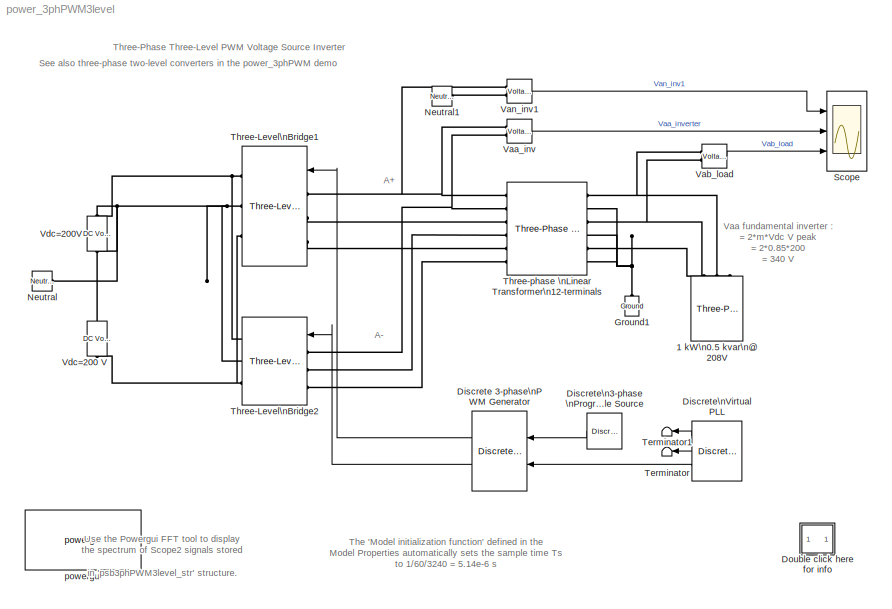
MODEL power_3phPWM3level
KIND model
CONFIG InitFcn = assignin('base','Ts',[1/60/3240])
BLOCK [Reference]   Vdc=200 V  REF=powerlib/Electrical\nSources/DC Voltage Source
  Amplitude = 200
  AttributesFormatString = \\n
  Description = source block
  Measurements = None
  Ports = [0, 0, 0, 0, 0, 1, 1]
  ShowPortLabels = on
  SourceBlock = powerlib/Electrical\nSources/DC Voltage Source
  SourceType = DC Voltage Source
BLOCK [Reference] 1 kW\n0.5 kvar\n@ 208V   REF=powerlib/Elements/Three-Phase\nParallel RLC Load
  ActivePower = 1000
  AttributesFormatString = \\n
  CapacitivePower = 500
  Configuration = Y (grounded)
  InductivePower = 0
  LConnTagsString = A|B|C
  LeftPortType = p1
  Measurements = None
  NominalFrequency = 60
  NominalVoltage = 208
  PhysicalDomain = powersysdomain
  Ports = [0, 0, 0, 0, 0, 3]
  RightPortType = p1
  SourceBlock = powerlib/Elements/Three-Phase\nParallel RLC Load
  SourceType = Three-Phase Parallel RLC Load
  SubClassName = unknown
BLOCK [Reference] Discrete 3-phase\nPWM Generator  REF=powerlib_extras/Discrete \nControl Blocks/Discrete 3-phase\nPWM Generator
  Fc = 18*60
  Freq = 60
  ModulatingSignals = off
  ModulatorMode = Synchronized
  ModulatorType = 3-level
  Phase = 0
  Ports = [2, 2]
  ShowPortLabels = on
  SourceBlock = powerlib_extras/Discrete \nControl Blocks/Discrete 3-phase\nPWM Generator
  SourceType = Discrete 3-phase PWM Generator (2- or 3-level)
  Ts = Ts
  m = 0.85
  nF = 18
BLOCK [Reference] Discrete\n3-phase \nProgrammable Source  REF=powerlib_extras/Discrete \nControl Blocks/Discrete\n3-phase \nProgrammable Source
  HarmonicGeneration = off
  Par_HarmoA = [3 0.2 -25 0]
  Par_HarmoB = [2 0.15 35 2]
  Par_Timing_Harmo = [0.05  3]
  Par_Timing_Variation = [0.1 1.2]
  Par_Vps = [0.85 0 60]
  Ports = [0, 1]
  ShowPortLabels = on
  SinglePhase = on
  SourceBlock = powerlib_extras/Discrete \nControl Blocks/Discrete\n3-phase \nProgrammable Source
  SourceType = Discrete 3-phase Programmable Source
  Ts = Ts
  VariationEntity = None
  VariationFreq = 2
  VariationMag = 0.3
  VariationRate = 10
  VariationStep = -0.5
  VariationType = Step
  Xtime = [0 0.1 0.15 0.2]
  Yampli = [1 0.2 1.2 1.0]
BLOCK [Reference] Discrete\nVirtual PLL  REF=powerlib_extras/Discrete \nControl Blocks/Discrete\nVirtual PLL
  Freq = 60
  Phase = 0
  Ports = [0, 3]
  ShowPortLabels = on
  SourceBlock = powerlib_extras/Discrete \nControl Blocks/Discrete\nVirtual PLL
  SourceType = Discrete Virtual PLL
  Ts = Ts
BLOCK [SubSystem] Double click here for  info
  MaskDisplay = disp('?')
  MaskIconFrame = on
  MaskIconOpaque = on
  MaskIconRotate = none
  MaskIconUnits = autoscale
  MinAlgLoopOccurrences = off
  Ports = []
  RTWSystemCode = Auto
  TreatAsAtomicUnit = off
BLOCK [Reference] Ground1  REF=powerlib/Elements/Ground
  AttributesFormatString = \\n
  LConnTagsString = a
  LeftPortType = p1
  PhysicalDomain = powersysdomain
  Ports = [0, 0, 0, 0, 0, 1]
  RightPortType = p1
  SourceBlock = powerlib/Elements/Ground
  SourceType = Ground
  SubClassName = unknown
BLOCK [Reference] Neutral  REF=powerlib/Elements/Neutral
  AttributesFormatString = node %<NodeNumber>
  LConnTagsString = a
  LeftPortType = p1
  NodeNumber = 10
  PhysicalDomain = powersysdomain
  Ports = [0, 0, 0, 0, 0, 1, 1]
  RConnTagsString = __newr0
  RightPortType = p1
  SourceBlock = powerlib/Elements/Neutral
  SourceType = Neutral
  SubClassName = unknown
BLOCK [Reference] Neutral1  REF=powerlib/Elements/Neutral
  AttributesFormatString = node %<NodeNumber>
  LConnTagsString = a
  LeftPortType = p1
  NodeNumber = 10
  PhysicalDomain = powersysdomain
  Ports = [0, 0, 0, 0, 0, 1, 1]
  RConnTagsString = __newr0
  RightPortType = p1
  SourceBlock = powerlib/Elements/Neutral
  SourceType = Neutral
  SubClassName = unknown
BLOCK [Scope] Scope
  DataFormat = StructureWithTime
  LimitDataPoints = off
  MaxDataPoints = 500000
  NumInputPorts = 3
  Ports = [3]
  SaveName = psb3phPWM3level_str
  SaveToWorkspace = on
  TimeRange = 0.1
  YMax = 300~400~400
  YMin = -300~-400~-400
  ZoomMode = yonly
BLOCK [Terminator] Terminator
BLOCK [Terminator] Terminator1
BLOCK [Reference] Three-Level\nBridge1  REF=powerlib/Power\nElectronics/Three-Level Bridge
  Arms = 3
  AttributesFormatString = \\n
  Device = GTO / Diodes
  ForwardVoltages = [  1  1  ]
  Measurements = None
  Ports = [1, 0, 0, 0, 0, 3, 3]
  Ron = 1e-4
  SbubberCapacitance = inf
  ShowPortLabels = on
  SnubberResistance = 1e6
  SourceBlock = powerlib/Power\nElectronics/Three-Level Bridge
  SourceType = Three-Level Bridge
BLOCK [Reference] Three-Level\nBridge2  REF=powerlib/Power\nElectronics/Three-Level Bridge
  Arms = 3
  AttributesFormatString = \\n
  Device = GTO / Diodes
  ForwardVoltages = [  1  1  ]
  Measurements = None
  Ports = [1, 0, 0, 0, 0, 3, 3]
  Ron = 1e-4
  SbubberCapacitance = inf
  ShowPortLabels = on
  SnubberResistance = 1e6
  SourceBlock = powerlib/Power\nElectronics/Three-Level Bridge
  SourceType = Three-Level Bridge
BLOCK [Reference] Three-phase \nLinear Transformer\n12-terminals  REF=powerlib/Elements/Three-Phase Transformer\n12 Terminals
  AttributesFormatString = \\n
  Ports = [0, 0, 0, 0, 0, 6, 6]
  RatedPower = [ 1000 60 ]
  RmXm = [ 200 200 ]
  ShowPortLabels = on
  SourceBlock = powerlib/Elements/Three-Phase Transformer\n12 Terminals
  SourceType = Three-Phase Linear Transformer 12-Terminals
  Winding1 = [ 240  0.002  0.04 ]
  Winding2 = [ 208/sqrt(3) 0.002 0.04]
BLOCK [Reference] Vaa_inv  REF=powerlib/Measurements/Voltage Measurement
  AttributesFormatString = \\n
  OutputType = Magnitude
  PSBequivalent = 0
  PhasorSimulation = off
  Ports = [0, 1, 0, 0, 0, 2]
  ShowPortLabels = on
  SourceBlock = powerlib/Measurements/Voltage Measurement
  SourceType = Voltage Measurement
  Tag = PoWeRsYsTeMmEaSuReMeNt
BLOCK [Reference] Vab_load  REF=powerlib/Measurements/Voltage Measurement
  AttributesFormatString = \\n
  OutputType = Magnitude
  PSBequivalent = 0
  PhasorSimulation = off
  Ports = [0, 1, 0, 0, 0, 2]
  ShowPortLabels = on
  SourceBlock = powerlib/Measurements/Voltage Measurement
  SourceType = Voltage Measurement
  Tag = PoWeRsYsTeMmEaSuReMeNt
BLOCK [Reference] Van_inv1  REF=powerlib/Measurements/Voltage Measurement
  AttributesFormatString = \\n
  OutputType = Magnitude
  PSBequivalent = 0
  PhasorSimulation = off
  Ports = [0, 1, 0, 0, 0, 2]
  ShowPortLabels = on
  SourceBlock = powerlib/Measurements/Voltage Measurement
  SourceType = Voltage Measurement
  Tag = PoWeRsYsTeMmEaSuReMeNt
BLOCK [Reference] Vdc=200V   REF=powerlib/Electrical\nSources/DC Voltage Source
  Amplitude = 200
  AttributesFormatString = \\n
  Description = source block
  Measurements = None
  Ports = [0, 0, 0, 0, 0, 1, 1]
  ShowPortLabels = on
  SourceBlock = powerlib/Electrical\nSources/DC Voltage Source
  SourceType = DC Voltage Source
BLOCK [Reference] powergui  REF=powerlib/powergui
  DisplayStyle = off
  Frange = [0:2:500]
  FreqAxis = on
  MaxFrequency = 5000
  Ports = []
  Priority = 2
  RmsSteady = 1
  ShowPortLabels = on
  SourceBlock = powerlib/powergui
  SourceType = PSB option menu block
  StartTime = 0.1-2/60
  Ts = Ts
  Xlog = off
  Ylog = off
  ZoomFFT = on
  cycles = 2
  display = off
  echomessages = on
  frequency = 60
  frequencyindice = 1
  frequencyindicesteady = 1
  fundamental = 60
  methode = off
  save = off
  structure = psb3phPWM3level_str
  variable = ZData
ANNOTATION (root): A+
ANNOTATION (root): A-
ANNOTATION (root): See also three-phase two-level converters in the power_3phPWM demo
ANNOTATION (root): The 'Model initialization function' defined in the\nModel Properties automatically sets the sample time Ts\nto 1/60/3240 = 5.14e-6 s
ANNOTATION (root): Three-Phase Three-Level PWM Voltage Source Inverter
ANNOTATION (root): Use the Powergui FFT tool to display\nthe spectrum of Scope2 signals stored\nin 'psb3phPWM3level_str' structure.
ANNOTATION (root): Vaa fundamental inverter :\n= 2*m*Vdc V peak\n= 2*0.85*200 \n= 340 V
ANNOTATION Double click here for  info: Circuit Description
ANNOTATION Double click here for  info: Demonstration
ANNOTATION Double click here for  info: P. Giroux and G. Sybille (Hydro-Quebec)
ANNOTATION Double click here for  info: Run the simulation and observe the following three waveforms on the Scope block:\nPhase-neutral voltage Van_inv1 generated by inverter 1 (trace 1), phase A voltage Vaa_inverter generated by the twin inverter (trace 2) and\nphase-phase load voltage Vab_load (trace 3). The Van_inv1 waveform cleary demonstrates the three levels: +200 V, 0 V, and -200 V.\n\nOnce the simulation is completed, open the P...<+1204ch>
ANNOTATION Double click here for  info: The system consists of two three-phase three-level PWM voltage source converters connected in twin configuration\nThe inverter feeds an AC load (1kW, 500 var 60Hz @ 208 Vrms) through a three-phase transformer.\nHarmonic filtering is performed by the transformer leakage inductance (8%) and load capacitance (500 var).\n\nEach of the two inverters uses the Three-Level Bridge block where the specified...<+1966ch>
ANNOTATION Double click here for  info: This demonstration illustrates simulation of a 3-phase, 3-level inverter\nand Discrete 3-phase PWM Generator. It also demonstrates \nharmonic analysis of PWM waveforms using the Powergui/FFT tool.
LINE Discrete 3-phase\nPWM Generator:1 -> Three-Level\nBridge1:1
LINE Discrete 3-phase\nPWM Generator:2 -> Three-Level\nBridge2:1
LINE Discrete\n3-phase \nProgrammable Source:1 -> Discrete 3-phase\nPWM Generator:1
LINE Discrete\nVirtual PLL:1 -> Terminator1:1
LINE Discrete\nVirtual PLL:2 -> Terminator:1
LINE Discrete\nVirtual PLL:3 -> Discrete 3-phase\nPWM Generator:2
LINE Vaa_inv:1 -> Scope:2
LINE Vab_load:1 -> Scope:3
LINE Van_inv1:1 -> Scope:1
PNET net1:   Vdc=200 V:LConn1 -- Three-Level\nBridge1:RConn3 -- Three-Level\nBridge2:RConn3
PNET net2:   Vdc=200 V:RConn1 -- Neutral:LConn1 -- Three-Level\nBridge1:RConn2 -- Three-Level\nBridge2:RConn2 -- Vdc=200V :LConn1
PLINE 1 kW\n0.5 kvar\n@ 208V :LConn1 -- Three-phase \nLinear Transformer\n12-terminals:RConn5
PNET net3: 1 kW\n0.5 kvar\n@ 208V :LConn2 -- Three-phase \nLinear Transformer\n12-terminals:RConn3 -- Vab_load:LConn2
PNET net4: 1 kW\n0.5 kvar\n@ 208V :LConn3 -- Three-phase \nLinear Transformer\n12-terminals:RConn1 -- Vab_load:LConn1
PNET net5: Ground1:LConn1 -- Three-phase \nLinear Transformer\n12-terminals:RConn2 -- Three-phase \nLinear Transformer\n12-terminals:RConn4 -- Three-phase \nLinear Transformer\n12-terminals:RConn6
PLINE Neutral1:LConn1 -- Van_inv1:LConn2
PNET net6: Three-Level\nBridge1:LConn1 -- Three-phase \nLinear Transformer\n12-terminals:LConn1 -- Vaa_inv:LConn1 -- Van_inv1:LConn1
PLINE Three-Level\nBridge1:LConn2 -- Three-phase \nLinear Transformer\n12-terminals:LConn3
PLINE Three-Level\nBridge1:LConn3 -- Three-phase \nLinear Transformer\n12-terminals:LConn5
PNET net7: Three-Level\nBridge1:RConn1 -- Three-Level\nBridge2:RConn1 -- Vdc=200V :RConn1
PNET net8: Three-Level\nBridge2:LConn1 -- Three-phase \nLinear Transformer\n12-terminals:LConn2 -- Vaa_inv:LConn2
PLINE Three-Level\nBridge2:LConn2 -- Three-phase \nLinear Transformer\n12-terminals:LConn4
PLINE Three-Level\nBridge2:LConn3 -- Three-phase \nLinear Transformer\n12-terminals:LConn6
note: PNET lines group multi-terminal physical nets as a canonical sorted terminal list (undirected conserving connections); 2-terminal nets keep the pairwise PLINE form
